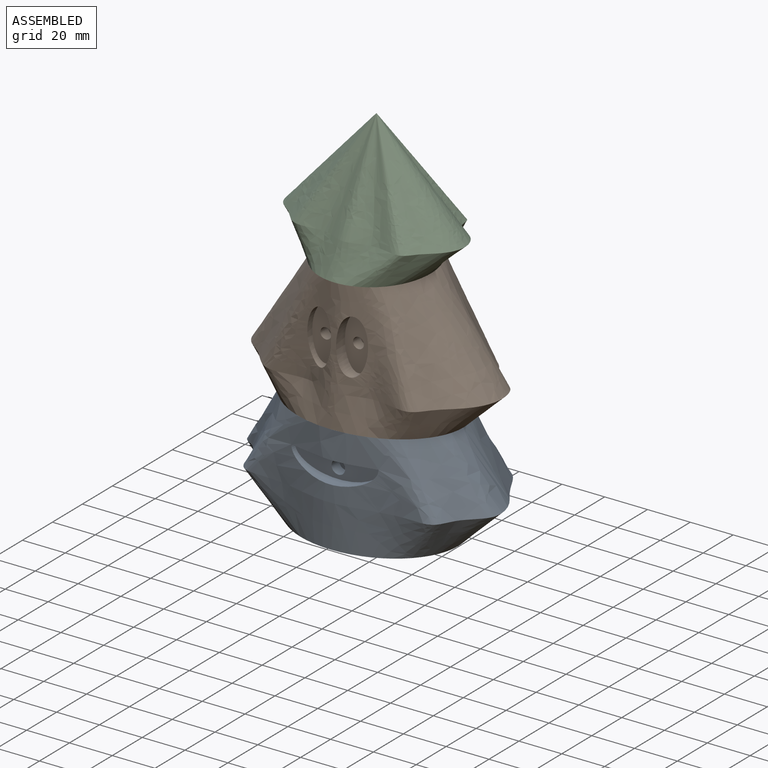
[diagram: assembled view]
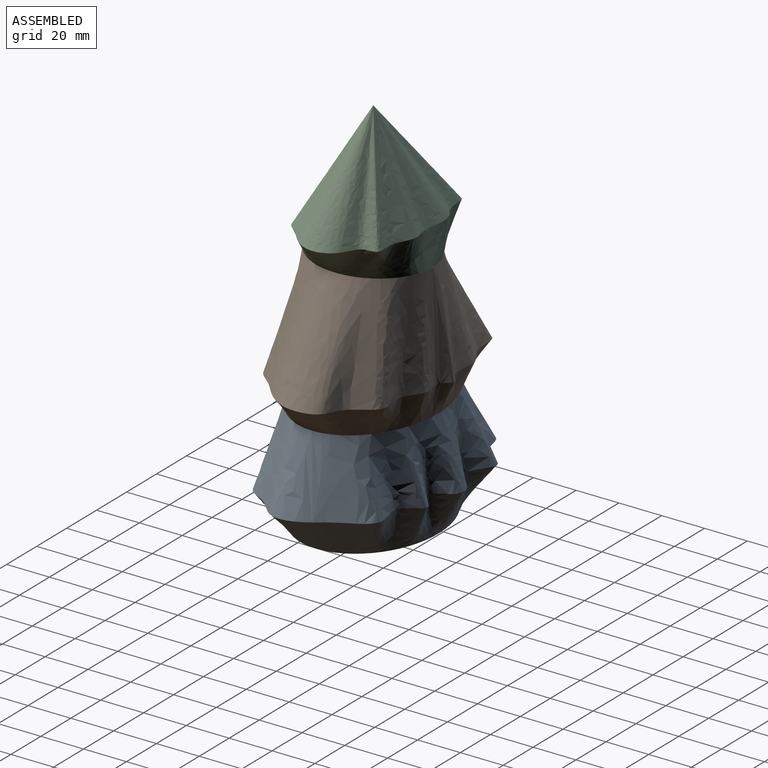
[diagram: assembled view, second angle]
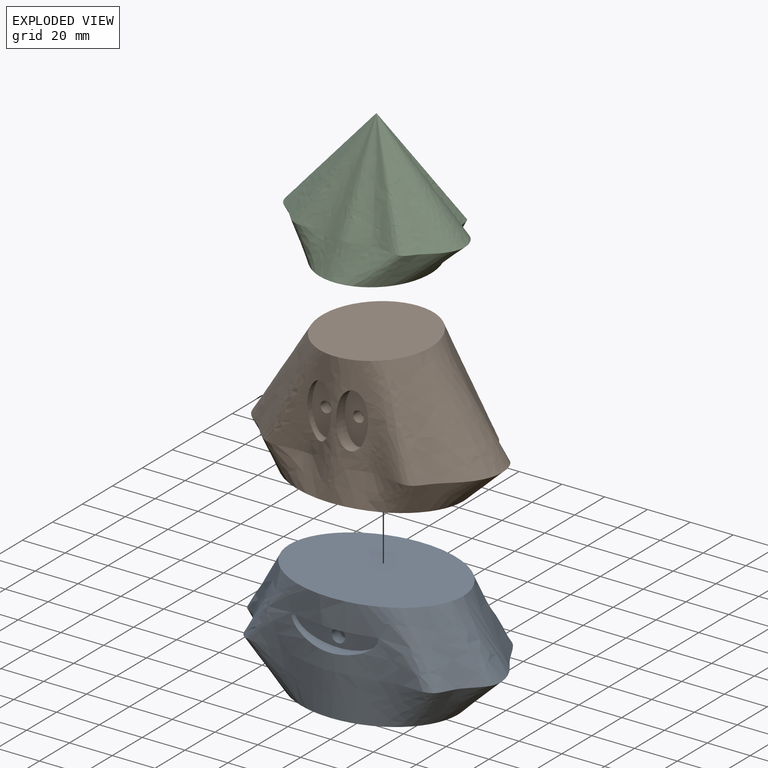
[diagram: exploded view]
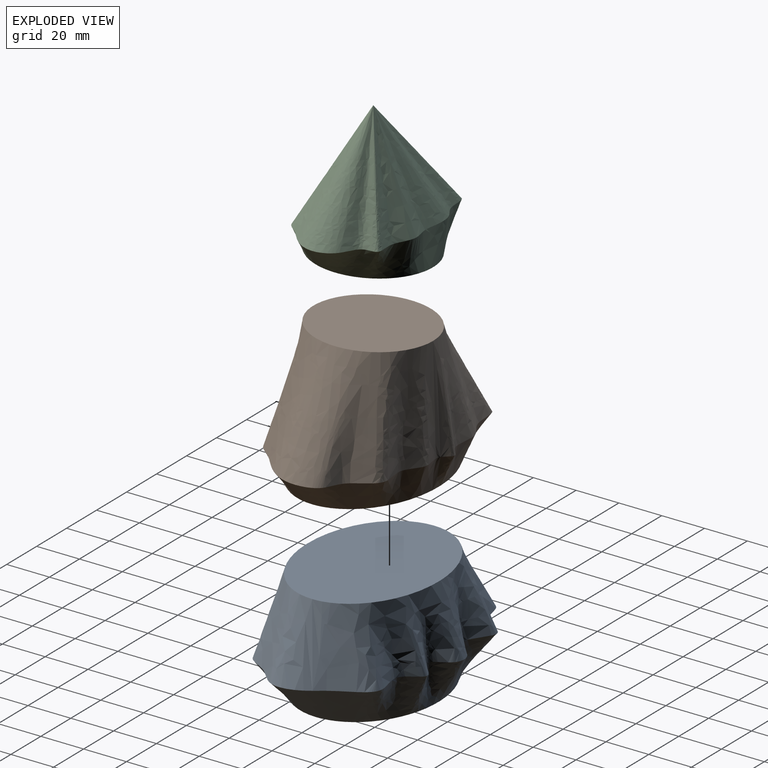
[diagram: exploded view, second angle]
ASSEMBLY  parts=3 mates=2
PART A: 13 faces, bbox 119.7x73.3x51.3 mm
  f0: plane 81.28x60.96mm, normal (0,0,1), area 3891.2mm2, adj f1
  f1: bspline ~119.21x72.8mm, area 8411.7mm2, adj f0,f3,f8,f9
  f2: plane 76.2x60.96mm, normal (0,0,-1), area 3205.6mm2, adj f3,f4,f6
  f3: bspline ~118.82x72.79mm, area 6244.9mm2, adj f1,f2
  f4: extruded ~26.42x10.67mm, area 618.9mm2, adj f2,f5
  f5: plane 26.42x10.67mm, normal (0,0,-1), area 221.3mm2, adj f4
  f6: extruded ~26.42x10.67mm, area 618.9mm2, adj f2,f7
  f7: plane 26.42x10.67mm, normal (0,0,-1), area 221.3mm2, adj f6
  f8: plane 41.1x5.93mm, normal (0,0,-1), area 170.5mm2, adj f1,f9,f10
  f9: extruded ~40.64x10.16mm, area 203.4mm2, adj f1,f8,f10
  f10: plane 40.64x10.16mm, normal (0,-1,0), area 292.6mm2, adj f8,f9,f11
  f11: cylinder r=3.17mm len=6.35mm, axis (0,-1,0), area 101.3mm2, adj f10,f12
  f12: plane 6.35x6.35mm, normal (0,-1,0), area 31.7mm2, adj f11
PART B: 12 faces, bbox 112.2x68.5x61 mm
  f0: bspline ~112.25x67.77mm, area 10577mm2, adj f1,f3,f4,f6
  f1: plane 55.88x50.8mm, normal (0,0,1), area 2229.3mm2, adj f0
  f2: plane 81.28x60.96mm, normal (0,0,-1), area 3891.5mm2, adj f3
  f3: bspline ~111.82x68.47mm, area 4427.8mm2, adj f0,f2
  f4: extruded ~25.4x12.7mm, area 272.8mm2, adj f0,f5
  f5: plane 25.4x12.7mm, normal (0,-1,0), area 233.1mm2, adj f4,f10
  f6: extruded ~25.4x12.7mm, area 261.7mm2, adj f0,f7
  f7: plane 25.4x12.7mm, normal (0,-1,0), area 233.1mm2, adj f6,f8
  f8: cylinder r=2.54mm len=5.08mm, axis (0,-1,0), area 81.1mm2, adj f7,f9
  f9: plane 5.08x5.08mm, normal (0,-1,0), area 20.3mm2, adj f8
  f10: cylinder r=2.54mm len=5.08mm, axis (0,-1,0), area 81.1mm2, adj f5,f11
  f11: plane 5.08x5.08mm, normal (0,-1,0), area 20.3mm2, adj f10
PART C: 3 faces, bbox 82.4x55.9x61 mm
  f0: plane 55.88x50.8mm, normal (0,0,-1), area 2229.6mm2, adj f1
  f1: bspline ~82.36x55.88mm, area 3249.5mm2, adj f0,f2
  f2: bspline ~82.23x47.96mm, area 5844mm2, adj f1
PLACE A t=(-6.9,40.45,35.36)mm
PLACE B t=(-6.9,40.45,81.08)mm
PLACE C t=(-6.9,40.45,142.04)mm
MATE fastened C.f0 <-> B.f1  axis (0,0,-1) through (-6.9,40.45,126.8)mm
MATE fastened B.f2 <-> A.f0  axis (0,0,-1) through (-6.9,40.45,65.84)mm
